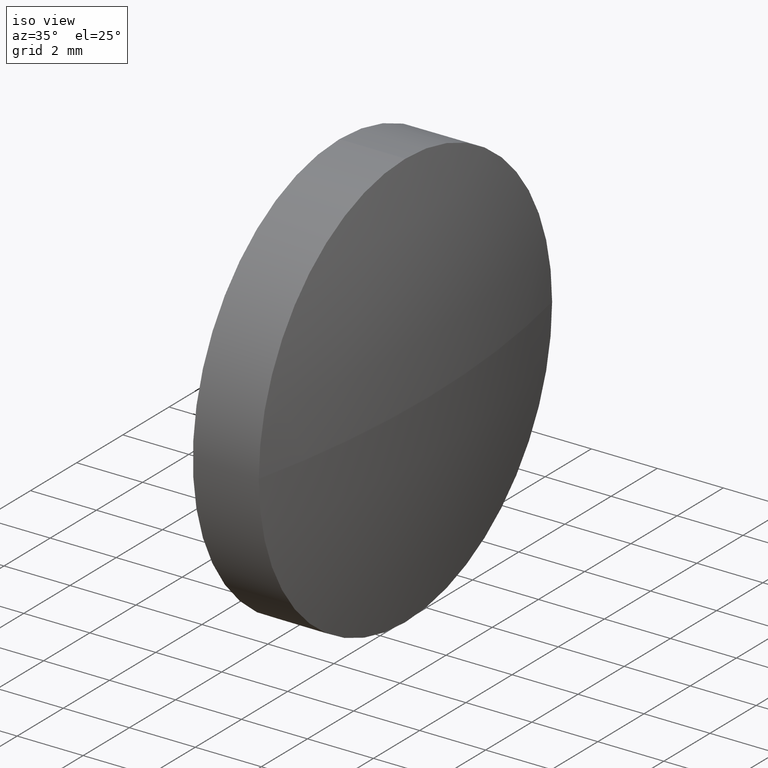
[diagram: clean part render]
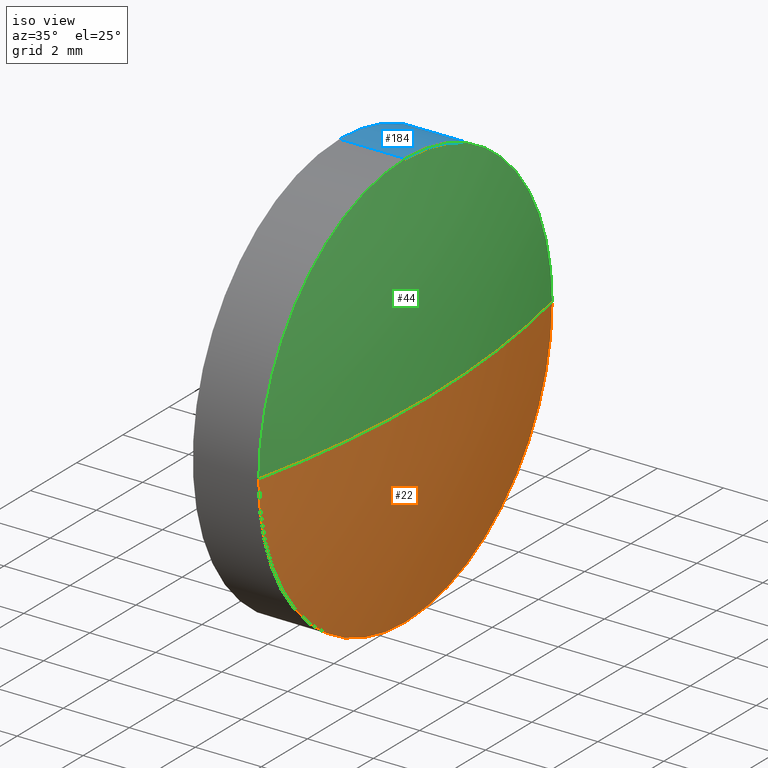
[diagram: same view with three faces highlighted in distinct colors, each labeled with its STEP entity id]
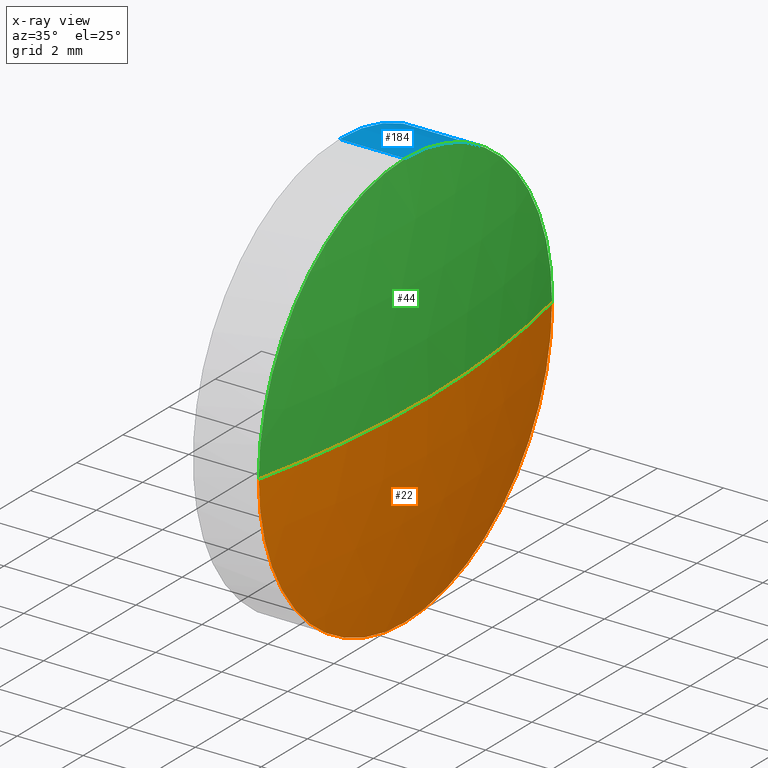
[diagram: x-ray of the same camera — body ghosted, the three highlighted faces saturated]
A machine part, iso view with three faces highlighted in distinct colors.
The next image is the same camera in x-ray (body ghosted, the three faces saturated) — at least one of them is partly hidden behind the body in this view.
Their STEP definitions:

[orange] entity #22 — the highlighted spherical surface has radius 29.1518 mm.
#2 = CIRCLE ( 'NONE', #148, 6.349999999999994300 ) ;
#3 = CIRCLE ( 'NONE', #124, 6.349999999999994300 ) ;
#7 = EDGE_CURVE ( 'NONE', #129, #14, #152, .T. ) ;
#14 = VERTEX_POINT ( 'NONE', #61 ) ;
#16 = ORIENTED_EDGE ( 'NONE', *, *, #114, .F. ) ;
#22 = ADVANCED_FACE ( 'NONE', ( #81 ), #68, .T. ) ;
#28 = DIRECTION ( 'NONE',  ( 0.0000000000000000000, 0.0000000000000000000, 1.000000000000000000 ) ) ;
#31 = DIRECTION ( 'NONE',  ( -1.000000000000000000, -0.0000000000000000000, -0.0000000000000000000 ) ) ;
#39 = DIRECTION ( 'NONE',  ( -0.0000000000000000000, 0.0000000000000000000, 1.000000000000000000 ) ) ;
#43 = CARTESIAN_POINT ( 'NONE',  ( 431.9431290117520900, 88.53423358317981200, 0.0000000000000000000 ) ) ;
#46 = CARTESIAN_POINT ( 'NONE',  ( 431.9431290117520900, 88.53423358317981200, 0.0000000000000000000 ) ) ;
#48 = EDGE_CURVE ( 'NONE', #129, #135, #166, .T. ) ;
#54 = ORIENTED_EDGE ( 'NONE', *, *, #48, .T. ) ;
#55 = AXIS2_PLACEMENT_3D ( 'NONE', #46, #95, #66 ) ;
#61 = CARTESIAN_POINT ( 'NONE',  ( 460.3949147260378300, 94.88423358317979300, 0.0000000000000000000 ) ) ;
#66 = DIRECTION ( 'NONE',  ( 0.0000000000000000000, 1.000000000000000000, 1.224646799147353200E-016 ) ) ;
#68 = SPHERICAL_SURFACE ( 'NONE', #82, 29.15178571428574000 ) ;
#69 = EDGE_CURVE ( 'NONE', #14, #74, #2, .T. ) ;
#74 = VERTEX_POINT ( 'NONE', #96 ) ;
#75 = CARTESIAN_POINT ( 'NONE',  ( 431.9431290117520900, 88.53423358317981200, 0.0000000000000000000 ) ) ;
#79 = DIRECTION ( 'NONE',  ( -0.0000000000000000000, 0.0000000000000000000, -1.000000000000000000 ) ) ;
#81 = FACE_OUTER_BOUND ( 'NONE', #112, .T. ) ;
#82 = AXIS2_PLACEMENT_3D ( 'NONE', #75, #79, #182 ) ;
#86 = AXIS2_PLACEMENT_3D ( 'NONE', #43, #39, #157 ) ;
#95 = DIRECTION ( 'NONE',  ( 0.0000000000000000000, 1.224646799147353200E-016, -1.000000000000000000 ) ) ;
#96 = CARTESIAN_POINT ( 'NONE',  ( 460.3949147260378300, 88.53423358317982700, -6.349999999999994300 ) ) ;
#101 = ORIENTED_EDGE ( 'NONE', *, *, #69, .F. ) ;
#112 = EDGE_LOOP ( 'NONE', ( #145, #54, #16, #101 ) ) ;
#113 = CARTESIAN_POINT ( 'NONE',  ( 460.3949147260378300, 88.53423358317982700, 0.0000000000000000000 ) ) ;
#114 = EDGE_CURVE ( 'NONE', #74, #135, #3, .T. ) ;
#124 = AXIS2_PLACEMENT_3D ( 'NONE', #150, #31, #132 ) ;
#129 = VERTEX_POINT ( 'NONE', #161 ) ;
#132 = DIRECTION ( 'NONE',  ( 0.0000000000000000000, 0.0000000000000000000, 1.000000000000000000 ) ) ;
#133 = CARTESIAN_POINT ( 'NONE',  ( 460.3949147260378300, 82.18423358317983200, -7.776507174585661600E-016 ) ) ;
#135 = VERTEX_POINT ( 'NONE', #133 ) ;
#145 = ORIENTED_EDGE ( 'NONE', *, *, #7, .F. ) ;
#148 = AXIS2_PLACEMENT_3D ( 'NONE', #113, #175, #28 ) ;
#150 = CARTESIAN_POINT ( 'NONE',  ( 460.3949147260378300, 88.53423358317982700, 0.0000000000000000000 ) ) ;
#152 = CIRCLE ( 'NONE', #86, 29.15178571428572600 ) ;
#157 = DIRECTION ( 'NONE',  ( 1.000000000000000000, 0.0000000000000000000, 0.0000000000000000000 ) ) ;
#161 = CARTESIAN_POINT ( 'NONE',  ( 461.0949147260378100, 88.53423358317981200, 0.0000000000000000000 ) ) ;
#166 = CIRCLE ( 'NONE', #55, 29.15178571428574000 ) ;
#175 = DIRECTION ( 'NONE',  ( -1.000000000000000000, -0.0000000000000000000, -0.0000000000000000000 ) ) ;
#182 = DIRECTION ( 'NONE',  ( 0.0000000000000000000, 1.000000000000000000, 0.0000000000000000000 ) ) ;

[blue] entity #184 — the highlighted cylindrical surface (partial cylindrical patch) has radius 6.35 mm, axis along (-1, -0, -0).
#1 = EDGE_CURVE ( 'NONE', #74, #85, #34, .T. ) ;
#2 = CIRCLE ( 'NONE', #148, 6.349999999999994300 ) ;
#4 = DIRECTION ( 'NONE',  ( -1.000000000000000000, -0.0000000000000000000, -0.0000000000000000000 ) ) ;
#14 = VERTEX_POINT ( 'NONE', #61 ) ;
#15 = ORIENTED_EDGE ( 'NONE', *, *, #41, .T. ) ;
#18 = DIRECTION ( 'NONE',  ( -1.000000000000000000, -0.0000000000000000000, -0.0000000000000000000 ) ) ;
#20 = AXIS2_PLACEMENT_3D ( 'NONE', #64, #162, #50 ) ;
#24 = DIRECTION ( 'NONE',  ( -1.000000000000000000, -0.0000000000000000000, -0.0000000000000000000 ) ) ;
#26 = CYLINDRICAL_SURFACE ( 'NONE', #70, 6.349999999999994300 ) ;
#28 = DIRECTION ( 'NONE',  ( 0.0000000000000000000, 0.0000000000000000000, 1.000000000000000000 ) ) ;
#30 = VERTEX_POINT ( 'NONE', #111 ) ;
#33 = AXIS2_PLACEMENT_3D ( 'NONE', #180, #18, #144 ) ;
#34 = LINE ( 'NONE', #146, #53 ) ;
#36 = CARTESIAN_POINT ( 'NONE',  ( 456.1343835801833400, 88.53423358317982700, 6.349999999999994300 ) ) ;
#41 = EDGE_CURVE ( 'NONE', #30, #14, #57, .T. ) ;
#50 = DIRECTION ( 'NONE',  ( 0.0000000000000000000, 0.0000000000000000000, 1.000000000000000000 ) ) ;
#53 = VECTOR ( 'NONE', #24, 1000.000000000000000 ) ;
#57 = CIRCLE ( 'NONE', #20, 6.349999999999994300 ) ;
#61 = CARTESIAN_POINT ( 'NONE',  ( 460.3949147260378300, 94.88423358317979300, 0.0000000000000000000 ) ) ;
#64 = CARTESIAN_POINT ( 'NONE',  ( 460.3949147260378300, 88.53423358317982700, 0.0000000000000000000 ) ) ;
#69 = EDGE_CURVE ( 'NONE', #14, #74, #2, .T. ) ;
#70 = AXIS2_PLACEMENT_3D ( 'NONE', #72, #4, #126 ) ;
#72 = CARTESIAN_POINT ( 'NONE',  ( 456.1343835801833400, 88.53423358317982700, 0.0000000000000000000 ) ) ;
#73 = CARTESIAN_POINT ( 'NONE',  ( 458.3949147260378300, 88.53423358317982700, 6.349999999999994300 ) ) ;
#74 = VERTEX_POINT ( 'NONE', #96 ) ;
#85 = VERTEX_POINT ( 'NONE', #186 ) ;
#96 = CARTESIAN_POINT ( 'NONE',  ( 460.3949147260378300, 88.53423358317982700, -6.349999999999994300 ) ) ;
#99 = ORIENTED_EDGE ( 'NONE', *, *, #69, .T. ) ;
#103 = LINE ( 'NONE', #36, #128 ) ;
#111 = CARTESIAN_POINT ( 'NONE',  ( 460.3949147260378300, 88.53423358317982700, 6.349999999999994300 ) ) ;
#113 = CARTESIAN_POINT ( 'NONE',  ( 460.3949147260378300, 88.53423358317982700, 0.0000000000000000000 ) ) ;
#119 = EDGE_LOOP ( 'NONE', ( #99, #183, #139, #155, #15 ) ) ;
#126 = DIRECTION ( 'NONE',  ( 0.0000000000000000000, 0.0000000000000000000, 1.000000000000000000 ) ) ;
#128 = VECTOR ( 'NONE', #167, 1000.000000000000000 ) ;
#139 = ORIENTED_EDGE ( 'NONE', *, *, #164, .F. ) ;
#144 = DIRECTION ( 'NONE',  ( 0.0000000000000000000, 0.0000000000000000000, 1.000000000000000000 ) ) ;
#146 = CARTESIAN_POINT ( 'NONE',  ( 456.1343835801833400, 88.53423358317982700, -6.349999999999994300 ) ) ;
#148 = AXIS2_PLACEMENT_3D ( 'NONE', #113, #175, #28 ) ;
#149 = FACE_OUTER_BOUND ( 'NONE', #119, .T. ) ;
#155 = ORIENTED_EDGE ( 'NONE', *, *, #177, .F. ) ;
#162 = DIRECTION ( 'NONE',  ( -1.000000000000000000, -0.0000000000000000000, -0.0000000000000000000 ) ) ;
#164 = EDGE_CURVE ( 'NONE', #185, #85, #168, .T. ) ;
#167 = DIRECTION ( 'NONE',  ( -1.000000000000000000, -0.0000000000000000000, -0.0000000000000000000 ) ) ;
#168 = CIRCLE ( 'NONE', #33, 6.349999999999994300 ) ;
#175 = DIRECTION ( 'NONE',  ( -1.000000000000000000, -0.0000000000000000000, -0.0000000000000000000 ) ) ;
#177 = EDGE_CURVE ( 'NONE', #30, #185, #103, .T. ) ;
#180 = CARTESIAN_POINT ( 'NONE',  ( 458.3949147260378300, 88.53423358317982700, 0.0000000000000000000 ) ) ;
#183 = ORIENTED_EDGE ( 'NONE', *, *, #1, .T. ) ;
#184 = ADVANCED_FACE ( 'NONE', ( #149 ), #26, .T. ) ;
#185 = VERTEX_POINT ( 'NONE', #73 ) ;
#186 = CARTESIAN_POINT ( 'NONE',  ( 458.3949147260378300, 88.53423358317982700, -6.349999999999994300 ) ) ;

[green] entity #44 — the highlighted spherical surface has radius 29.1518 mm.
#7 = EDGE_CURVE ( 'NONE', #129, #14, #152, .T. ) ;
#10 = CARTESIAN_POINT ( 'NONE',  ( 431.9431290117520900, 88.53423358317981200, 0.0000000000000000000 ) ) ;
#11 = CARTESIAN_POINT ( 'NONE',  ( 460.3949147260378300, 88.53423358317982700, 0.0000000000000000000 ) ) ;
#13 = DIRECTION ( 'NONE',  ( -1.000000000000000000, -0.0000000000000000000, -0.0000000000000000000 ) ) ;
#14 = VERTEX_POINT ( 'NONE', #61 ) ;
#20 = AXIS2_PLACEMENT_3D ( 'NONE', #64, #162, #50 ) ;
#27 = DIRECTION ( 'NONE',  ( -0.0000000000000000000, 0.0000000000000000000, -1.000000000000000000 ) ) ;
#30 = VERTEX_POINT ( 'NONE', #111 ) ;
#32 = EDGE_CURVE ( 'NONE', #135, #30, #176, .T. ) ;
#39 = DIRECTION ( 'NONE',  ( -0.0000000000000000000, 0.0000000000000000000, 1.000000000000000000 ) ) ;
#41 = EDGE_CURVE ( 'NONE', #30, #14, #57, .T. ) ;
#43 = CARTESIAN_POINT ( 'NONE',  ( 431.9431290117520900, 88.53423358317981200, 0.0000000000000000000 ) ) ;
#44 = ADVANCED_FACE ( 'NONE', ( #62 ), #65, .T. ) ;
#46 = CARTESIAN_POINT ( 'NONE',  ( 431.9431290117520900, 88.53423358317981200, 0.0000000000000000000 ) ) ;
#48 = EDGE_CURVE ( 'NONE', #129, #135, #166, .T. ) ;
#50 = DIRECTION ( 'NONE',  ( 0.0000000000000000000, 0.0000000000000000000, 1.000000000000000000 ) ) ;
#55 = AXIS2_PLACEMENT_3D ( 'NONE', #46, #95, #66 ) ;
#57 = CIRCLE ( 'NONE', #20, 6.349999999999994300 ) ;
#61 = CARTESIAN_POINT ( 'NONE',  ( 460.3949147260378300, 94.88423358317979300, 0.0000000000000000000 ) ) ;
#62 = FACE_OUTER_BOUND ( 'NONE', #125, .T. ) ;
#64 = CARTESIAN_POINT ( 'NONE',  ( 460.3949147260378300, 88.53423358317982700, 0.0000000000000000000 ) ) ;
#65 = SPHERICAL_SURFACE ( 'NONE', #108, 29.15178571428574000 ) ;
#66 = DIRECTION ( 'NONE',  ( 0.0000000000000000000, 1.000000000000000000, 1.224646799147353200E-016 ) ) ;
#86 = AXIS2_PLACEMENT_3D ( 'NONE', #43, #39, #157 ) ;
#94 = ORIENTED_EDGE ( 'NONE', *, *, #48, .F. ) ;
#95 = DIRECTION ( 'NONE',  ( 0.0000000000000000000, 1.224646799147353200E-016, -1.000000000000000000 ) ) ;
#97 = ORIENTED_EDGE ( 'NONE', *, *, #41, .F. ) ;
#102 = AXIS2_PLACEMENT_3D ( 'NONE', #11, #13, #147 ) ;
#108 = AXIS2_PLACEMENT_3D ( 'NONE', #10, #27, #174 ) ;
#111 = CARTESIAN_POINT ( 'NONE',  ( 460.3949147260378300, 88.53423358317982700, 6.349999999999994300 ) ) ;
#125 = EDGE_LOOP ( 'NONE', ( #94, #134, #97, #171 ) ) ;
#129 = VERTEX_POINT ( 'NONE', #161 ) ;
#133 = CARTESIAN_POINT ( 'NONE',  ( 460.3949147260378300, 82.18423358317983200, -7.776507174585661600E-016 ) ) ;
#134 = ORIENTED_EDGE ( 'NONE', *, *, #7, .T. ) ;
#135 = VERTEX_POINT ( 'NONE', #133 ) ;
#147 = DIRECTION ( 'NONE',  ( 0.0000000000000000000, 0.0000000000000000000, 1.000000000000000000 ) ) ;
#152 = CIRCLE ( 'NONE', #86, 29.15178571428572600 ) ;
#157 = DIRECTION ( 'NONE',  ( 1.000000000000000000, 0.0000000000000000000, 0.0000000000000000000 ) ) ;
#161 = CARTESIAN_POINT ( 'NONE',  ( 461.0949147260378100, 88.53423358317981200, 0.0000000000000000000 ) ) ;
#162 = DIRECTION ( 'NONE',  ( -1.000000000000000000, -0.0000000000000000000, -0.0000000000000000000 ) ) ;
#166 = CIRCLE ( 'NONE', #55, 29.15178571428574000 ) ;
#171 = ORIENTED_EDGE ( 'NONE', *, *, #32, .F. ) ;
#174 = DIRECTION ( 'NONE',  ( 0.0000000000000000000, 1.000000000000000000, 0.0000000000000000000 ) ) ;
#176 = CIRCLE ( 'NONE', #102, 6.349999999999994300 ) ;